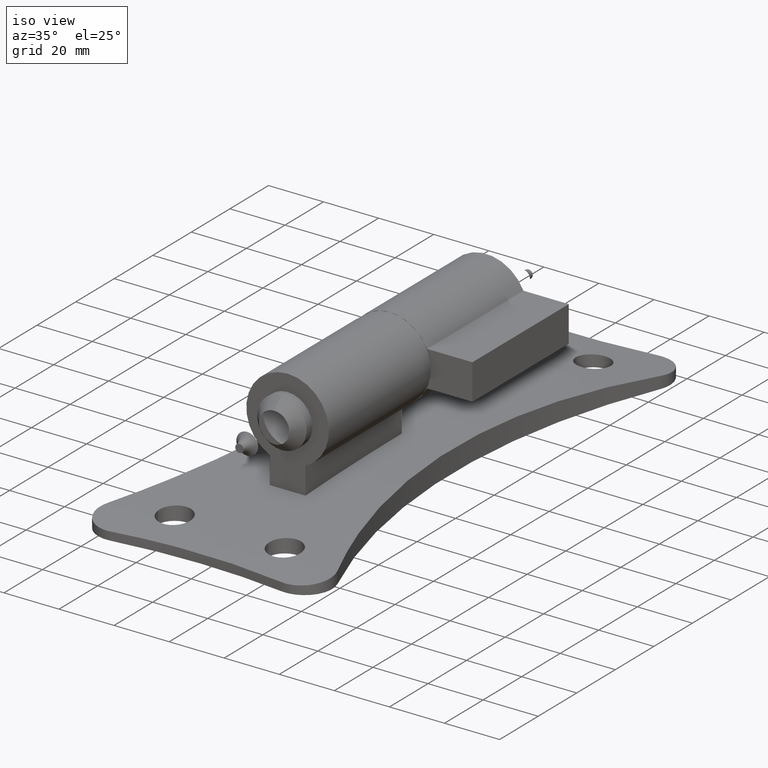
[diagram: clean part render]
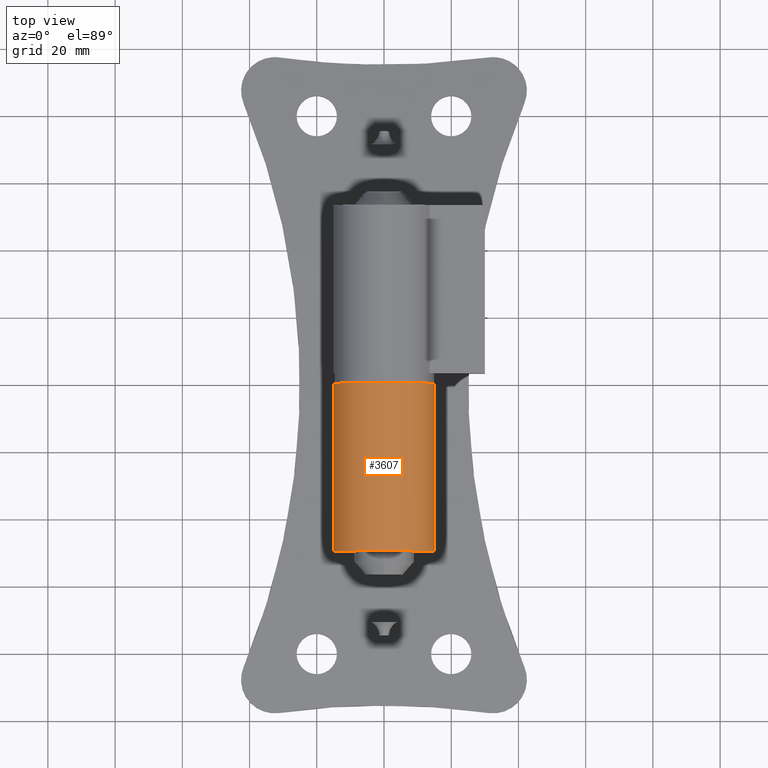
[diagram: tour spotlight — one face highlighted and labeled with its STEP entity id]
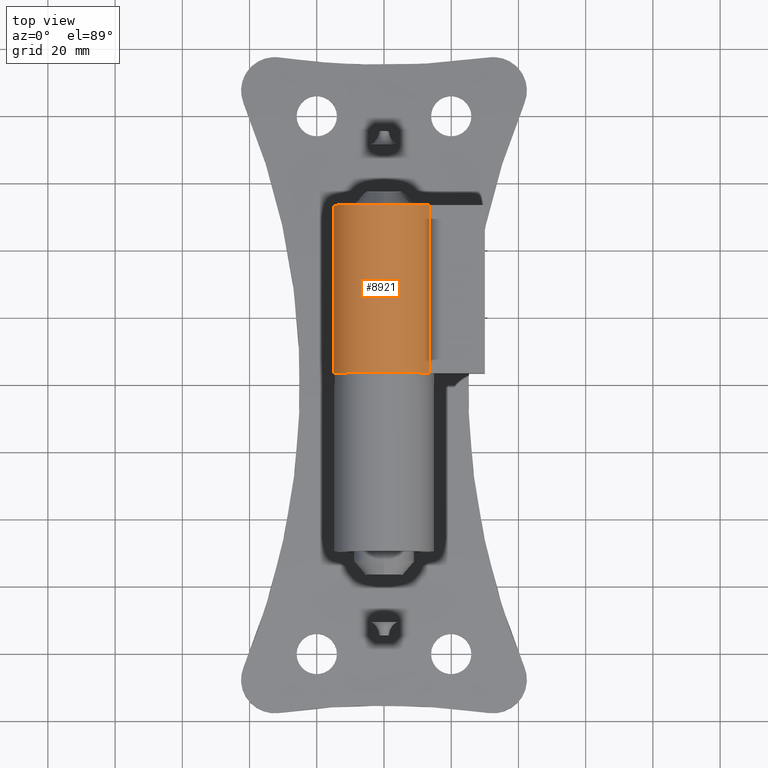
[diagram: tour spotlight — one face highlighted and labeled with its STEP entity id]
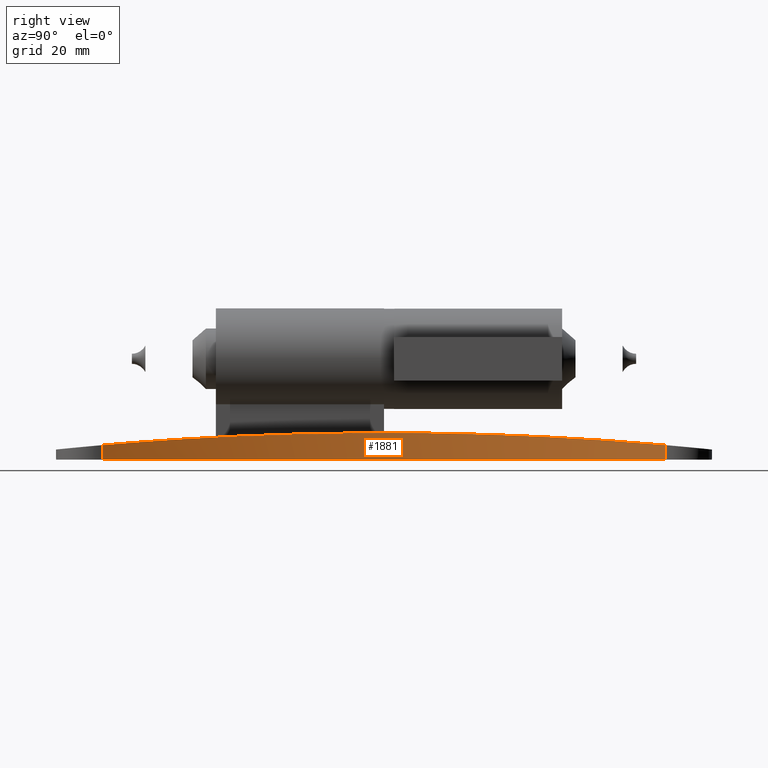
[diagram: tour spotlight — one face highlighted and labeled with its STEP entity id]
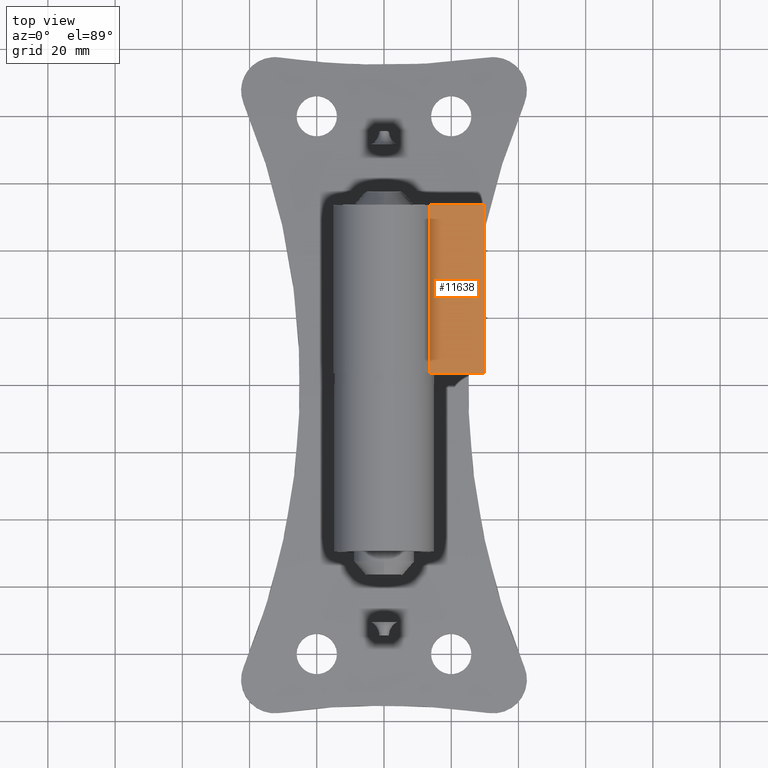
[diagram: tour spotlight — one face highlighted and labeled with its STEP entity id]
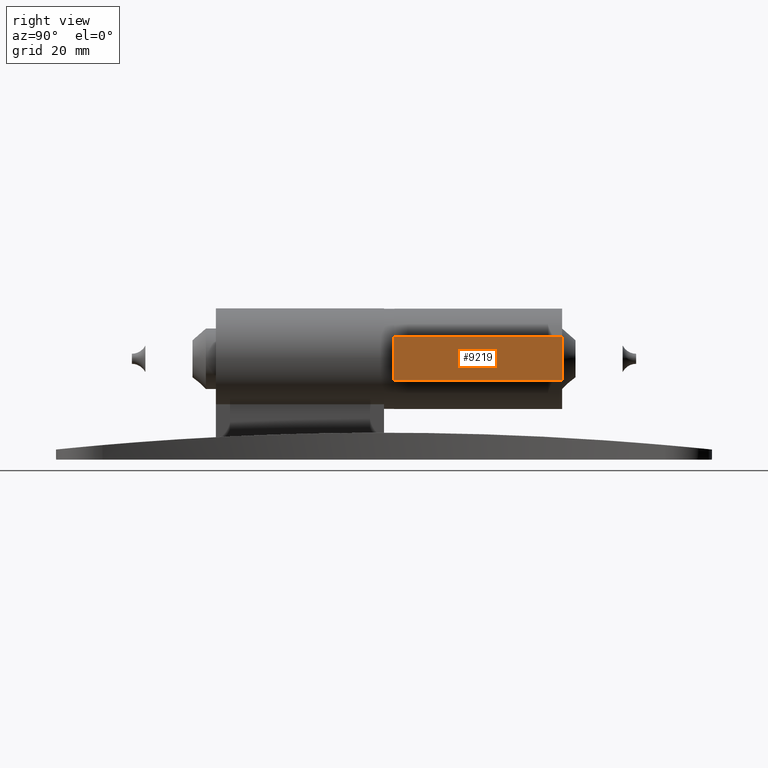
[diagram: tour spotlight — one face highlighted and labeled with its STEP entity id]
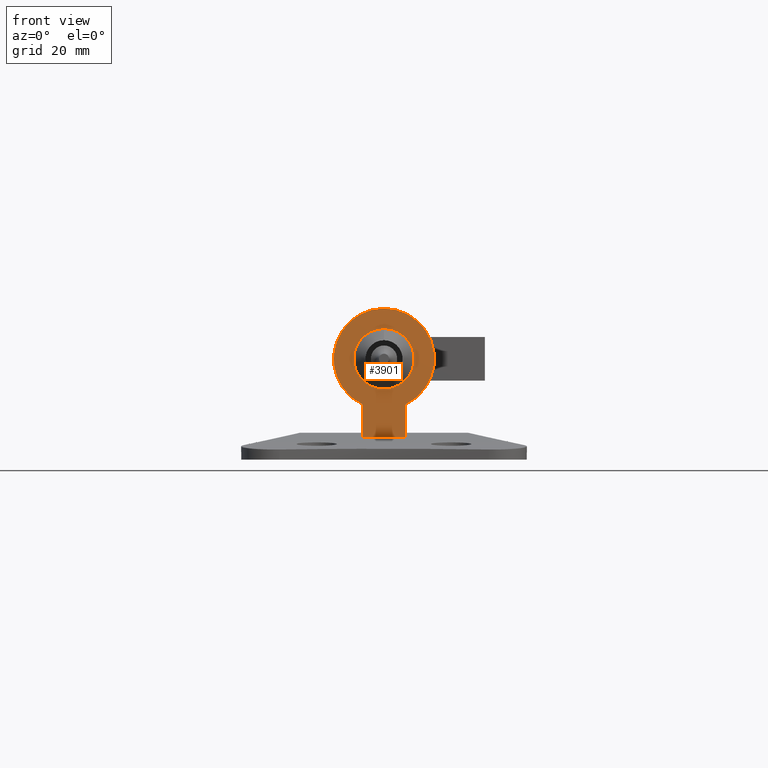
[diagram: tour spotlight — one face highlighted and labeled with its STEP entity id]
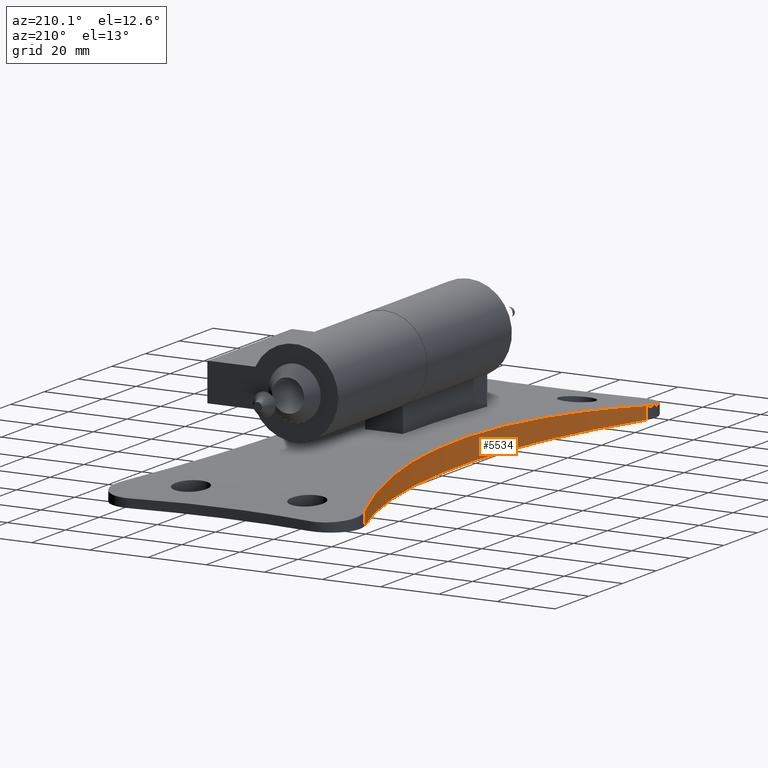
[diagram: tour spotlight — one face highlighted and labeled with its STEP entity id]
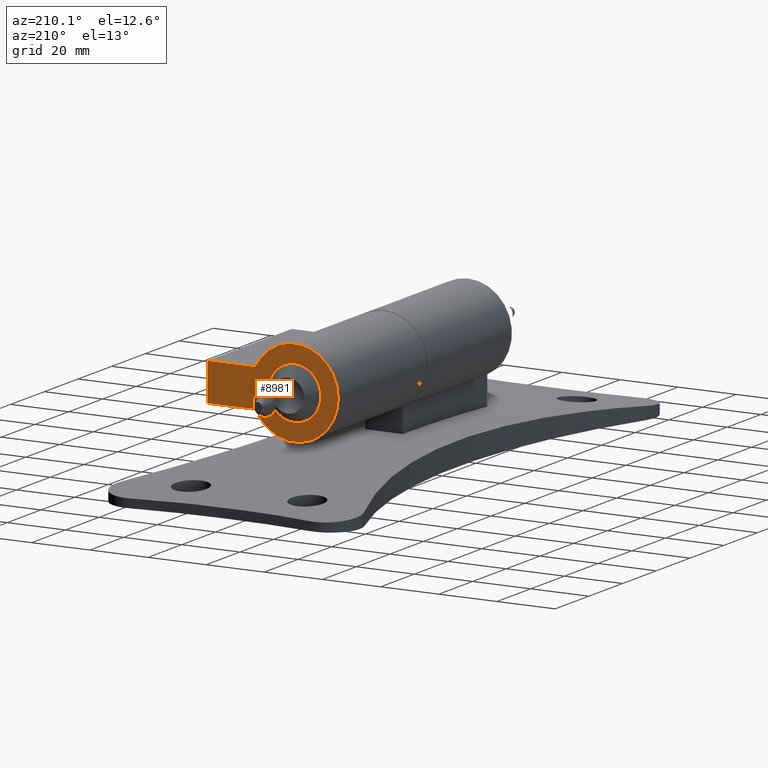
[diagram: tour spotlight — one face highlighted and labeled with its STEP entity id]
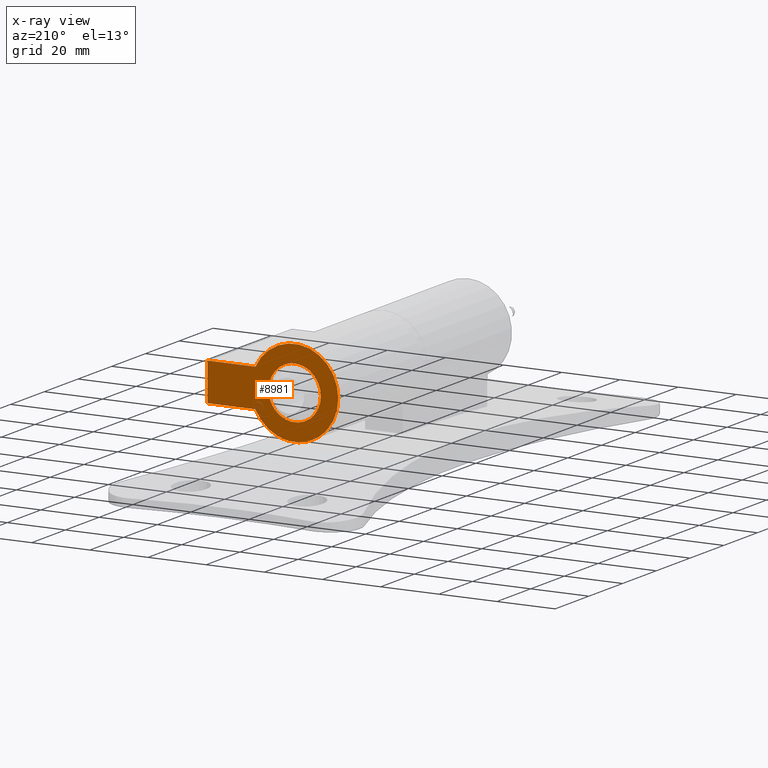
[diagram: x-ray of the same camera — body ghosted, this tour face saturated]
A machine part: a face-by-face anatomy tour. The part has 214 B-rep faces; the first image is the clean iso view, then the 8 largest visible faces are spotlighted one at a time (largest first), each with its STEP entity span.

Face 1 — top view, entity #3607. In plain terms, the highlighted cylindrical surface (partial cylindrical patch) has radius 15 mm, axis along (0, 1, 0).
Definition (entity closure, byte-faithful):
#750 = CARTESIAN_POINT ( 'NONE',  ( -6.499999999999992895, -50.00000000000000000, 16.48149416540422152 ) ) ;
#1004 = DIRECTION ( 'NONE',  ( 0.000000000000000000, 1.000000000000000000, 0.000000000000000000 ) ) ;
#1017 = VERTEX_POINT ( 'NONE', #11259 ) ;
#1305 = LINE ( 'NONE', #750, #7776 ) ;
#1609 = EDGE_CURVE ( 'NONE', #9383, #10942, #9232, .T. ) ;
#1632 = DIRECTION ( 'NONE',  ( 0.000000000000000000, 1.000000000000000000, 0.000000000000000000 ) ) ;
#1763 = AXIS2_PLACEMENT_3D ( 'NONE', #9105, #1004, #10952 ) ;
#2274 = DIRECTION ( 'NONE',  ( 0.000000000000000000, 0.000000000000000000, 1.000000000000000000 ) ) ;
#2927 = CARTESIAN_POINT ( 'NONE',  ( 6.499999999999998224, -50.00000000000000000, 16.48149416540422507 ) ) ;
#3265 = EDGE_LOOP ( 'NONE', ( #7234, #3302, #5886, #7516 ) ) ;
#3302 = ORIENTED_EDGE ( 'NONE', *, *, #6980, .F. ) ;
#3607 = ADVANCED_FACE ( 'NONE', ( #8219 ), #8625, .T. ) ;
#3808 = AXIS2_PLACEMENT_3D ( 'NONE', #7684, #4953, #2274 ) ;
#4469 = CARTESIAN_POINT ( 'NONE',  ( -6.499999999999992895, 0.000000000000000000, 16.48149416540422152 ) ) ;
#4597 = DIRECTION ( 'NONE',  ( 0.000000000000000000, 1.000000000000000000, 0.000000000000000000 ) ) ;
#4953 = DIRECTION ( 'NONE',  ( 0.000000000000000000, 1.000000000000000000, 0.000000000000000000 ) ) ;
#5318 = AXIS2_PLACEMENT_3D ( 'NONE', #9962, #4597, #5486 ) ;
#5486 = DIRECTION ( 'NONE',  ( 0.000000000000000000, 0.000000000000000000, 1.000000000000000000 ) ) ;
#5886 = ORIENTED_EDGE ( 'NONE', *, *, #7231, .T. ) ;
#5965 = EDGE_CURVE ( 'NONE', #9263, #10942, #8128, .T. ) ;
#6980 = EDGE_CURVE ( 'NONE', #1017, #9263, #1305, .T. ) ;
#7231 = EDGE_CURVE ( 'NONE', #1017, #9383, #11193, .T. ) ;
#7234 = ORIENTED_EDGE ( 'NONE', *, *, #5965, .F. ) ;
#7516 = ORIENTED_EDGE ( 'NONE', *, *, #1609, .T. ) ;
#7684 = CARTESIAN_POINT ( 'NONE',  ( 0.000000000000000000, 0.000000000000000000, 30.00000000000000000 ) ) ;
#7730 = DIRECTION ( 'NONE',  ( 0.000000000000000000, 1.000000000000000000, 0.000000000000000000 ) ) ;
#7776 = VECTOR ( 'NONE', #1632, 1000.000000000000000 ) ;
#8128 = CIRCLE ( 'NONE', #3808, 15.00000000000000000 ) ;
#8219 = FACE_OUTER_BOUND ( 'NONE', #3265, .T. ) ;
#8549 = CARTESIAN_POINT ( 'NONE',  ( 6.499999999999998224, -50.00000000000000000, 16.48149416540422507 ) ) ;
#8625 = CYLINDRICAL_SURFACE ( 'NONE', #5318, 15.00000000000000000 ) ;
#9105 = CARTESIAN_POINT ( 'NONE',  ( 0.000000000000000000, -50.00000000000000000, 30.00000000000000000 ) ) ;
#9232 = LINE ( 'NONE', #8549, #9517 ) ;
#9263 = VERTEX_POINT ( 'NONE', #4469 ) ;
#9301 = CARTESIAN_POINT ( 'NONE',  ( 6.499999999999998224, 0.000000000000000000, 16.48149416540422507 ) ) ;
#9383 = VERTEX_POINT ( 'NONE', #2927 ) ;
#9517 = VECTOR ( 'NONE', #7730, 1000.000000000000000 ) ;
#9962 = CARTESIAN_POINT ( 'NONE',  ( 0.000000000000000000, -50.00000000000000000, 30.00000000000000000 ) ) ;
#10942 = VERTEX_POINT ( 'NONE', #9301 ) ;
#10952 = DIRECTION ( 'NONE',  ( 0.000000000000000000, 0.000000000000000000, 1.000000000000000000 ) ) ;
#11193 = CIRCLE ( 'NONE', #1763, 15.00000000000000000 ) ;
#11259 = CARTESIAN_POINT ( 'NONE',  ( -6.499999999999992895, -50.00000000000000000, 16.48149416540422152 ) ) ;

Face 2 — top view, entity #8921. In plain terms, the highlighted cylindrical surface (partial cylindrical patch) has radius 15 mm, axis along (0, -1, 0).
Definition (entity closure, byte-faithful):
#224 = CARTESIAN_POINT ( 'NONE',  ( 0.000000000000000000, 25.00000000000000000, 0.000000000000000000 ) ) ;
#252 = EDGE_CURVE ( 'NONE', #10775, #6697, #8673, .T. ) ;
#255 = CIRCLE ( 'NONE', #7672, 15.00000000000000355 ) ;
#438 = CARTESIAN_POINT ( 'NONE',  ( 6.499999999999999112, 25.00000000000000000, -13.51850583459577670 ) ) ;
#1468 = DIRECTION ( 'NONE',  ( 0.000000000000000000, -1.000000000000000000, 0.000000000000000000 ) ) ;
#1552 = VECTOR ( 'NONE', #7489, 1000.000000000000000 ) ;
#1702 = DIRECTION ( 'NONE',  ( 0.000000000000000000, 1.000000000000000000, 0.000000000000000000 ) ) ;
#1709 = VERTEX_POINT ( 'NONE', #9441 ) ;
#1888 = DIRECTION ( 'NONE',  ( 0.000000000000000000, 0.000000000000000000, 1.000000000000000000 ) ) ;
#2059 = CARTESIAN_POINT ( 'NONE',  ( -6.499999999999999112, 25.00000000000000000, -13.51850583459577848 ) ) ;
#2111 = DIRECTION ( 'NONE',  ( 0.000000000000000000, 0.000000000000000000, -1.000000000000000000 ) ) ;
#2536 = ORIENTED_EDGE ( 'NONE', *, *, #9309, .T. ) ;
#2789 = CARTESIAN_POINT ( 'NONE',  ( 0.000000000000000000, -25.00000000000000000, 0.000000000000000000 ) ) ;
#4508 = LINE ( 'NONE', #2059, #1552 ) ;
#4667 = CARTESIAN_POINT ( 'NONE',  ( 6.499999999999999112, 25.00000000000000000, -13.51850583459577670 ) ) ;
#4800 = VERTEX_POINT ( 'NONE', #9629 ) ;
#5167 = AXIS2_PLACEMENT_3D ( 'NONE', #224, #8338, #2111 ) ;
#5384 = DIRECTION ( 'NONE',  ( 0.000000000000000000, 1.000000000000000000, 0.000000000000000000 ) ) ;
#5542 = ORIENTED_EDGE ( 'NONE', *, *, #10716, .T. ) ;
#5550 = EDGE_LOOP ( 'NONE', ( #5542, #7904, #8426, #2536 ) ) ;
#6697 = VERTEX_POINT ( 'NONE', #4667 ) ;
#6745 = FACE_OUTER_BOUND ( 'NONE', #5550, .T. ) ;
#7025 = CYLINDRICAL_SURFACE ( 'NONE', #5167, 15.00000000000000355 ) ;
#7312 = VECTOR ( 'NONE', #1468, 1000.000000000000000 ) ;
#7489 = DIRECTION ( 'NONE',  ( 0.000000000000000000, -1.000000000000000000, 0.000000000000000000 ) ) ;
#7602 = LINE ( 'NONE', #438, #7312 ) ;
#7672 = AXIS2_PLACEMENT_3D ( 'NONE', #2789, #5384, #1888 ) ;
#7904 = ORIENTED_EDGE ( 'NONE', *, *, #9553, .F. ) ;
#7976 = DIRECTION ( 'NONE',  ( 0.000000000000000000, 0.000000000000000000, 1.000000000000000000 ) ) ;
#8338 = DIRECTION ( 'NONE',  ( 0.000000000000000000, -1.000000000000000000, 0.000000000000000000 ) ) ;
#8426 = ORIENTED_EDGE ( 'NONE', *, *, #252, .F. ) ;
#8673 = CIRCLE ( 'NONE', #9858, 15.00000000000000355 ) ;
#8921 = ADVANCED_FACE ( 'NONE', ( #6745 ), #7025, .T. ) ;
#9309 = EDGE_CURVE ( 'NONE', #10775, #4800, #4508, .T. ) ;
#9441 = CARTESIAN_POINT ( 'NONE',  ( 6.499999999999999112, -25.00000000000000000, -13.51850583459577670 ) ) ;
#9553 = EDGE_CURVE ( 'NONE', #6697, #1709, #7602, .T. ) ;
#9629 = CARTESIAN_POINT ( 'NONE',  ( -6.499999999999999112, -25.00000000000000000, -13.51850583459577848 ) ) ;
#9725 = CARTESIAN_POINT ( 'NONE',  ( 0.000000000000000000, 25.00000000000000000, 0.000000000000000000 ) ) ;
#9858 = AXIS2_PLACEMENT_3D ( 'NONE', #9725, #1702, #7976 ) ;
#10716 = EDGE_CURVE ( 'NONE', #4800, #1709, #255, .T. ) ;
#10775 = VERTEX_POINT ( 'NONE', #10911 ) ;
#10911 = CARTESIAN_POINT ( 'NONE',  ( -6.499999999999999112, 25.00000000000000000, -13.51850583459577848 ) ) ;

Face 3 — right view, entity #1881. In plain terms, the highlighted cylindrical surface (partial cylindrical patch) has radius 218 mm, axis along (-0, -0, -1).
Definition (entity closure, byte-faithful):
#453 = CARTESIAN_POINT ( 'NONE',  ( 32.34425567468348817, -56.56549752855829638, 6.348277840994082766 ) ) ;
#490 = CARTESIAN_POINT ( 'NONE',  ( 38.96373255751093723, 77.10468155604596063, 4.905950750514575631 ) ) ;
#646 = VERTEX_POINT ( 'NONE', #9670 ) ;
#759 = B_SPLINE_CURVE_WITH_KNOTS ( 'NONE', 3,
 ( #2113, #490, #3133, #1377, #9454, #5812, #2192, #1267, #4085, #3028, #3097, #2152, #7667, #2222, #5853, #6739, #3176, #5889, #453, #8448, #6703, #9417, #1338, #7623, #4045, #9335 ),
 .UNSPECIFIED., .F., .F.,
 ( 4, 2, 2, 2, 2, 2, 2, 2, 2, 2, 2, 2, 4 ),
 ( -0.08553153312487930815, -0.06414806992872293390, -0.04276460673256655270, -0.02138114353641017151, -0.01603527773737108142, -0.01068941193833200520, 2.319659746174984605E-06, 0.02138578285590252148, 0.04276924605205890961, 0.06415270924821524223, 0.06949857504725436008, 0.07484444084629345018, 0.08553617244437163036 ),
 .UNSPECIFIED. ) ;
#1267 = CARTESIAN_POINT ( 'NONE',  ( 25.89708387510080456, 19.83820288359617834, 7.795620354405551566 ) ) ;
#1323 = CIRCLE ( 'NONE', #3512, 217.9999999999999716 ) ;
#1338 = CARTESIAN_POINT ( 'NONE',  ( 37.21942091343402836, -71.98333903162497904, 5.284988638162904095 ) ) ;
#1377 = CARTESIAN_POINT ( 'NONE',  ( 32.38872751653794069, 56.72507851762770059, 6.338472820810558517 ) ) ;
#1397 = CARTESIAN_POINT ( 'NONE',  ( 41.73245614035086959, -83.75784016260337239, 0.000000000000000000 ) ) ;
#1640 = VERTEX_POINT ( 'NONE', #1397 ) ;
#1767 = CARTESIAN_POINT ( 'NONE',  ( 243.0000000000000000, 5.951782687918847827E-14, 8.000000000000000000 ) ) ;
#1881 = ADVANCED_FACE ( 'NONE', ( #7087 ), #5537, .F. ) ;
#2113 = CARTESIAN_POINT ( 'NONE',  ( 41.73245614035089091, 83.75784016260337239, 4.320227545400734392 ) ) ;
#2152 = CARTESIAN_POINT ( 'NONE',  ( 25.08981896449668980, 7.225989119736580868, 7.979486417518203645 ) ) ;
#2192 = CARTESIAN_POINT ( 'NONE',  ( 26.78861674261857928, 28.78064431700069292, 7.593076006480350415 ) ) ;
#2222 = CARTESIAN_POINT ( 'NONE',  ( 25.00007807629693346, -7.233689743125000682, 7.999982178745385752 ) ) ;
#2270 = ORIENTED_EDGE ( 'NONE', *, *, #7409, .F. ) ;
#2741 = DIRECTION ( 'NONE',  ( 1.000000000000000000, 0.000000000000000000, 0.000000000000000000 ) ) ;
#2948 = CARTESIAN_POINT ( 'NONE',  ( 41.73245614035089091, 83.75784016260337239, 4.320227545400734392 ) ) ;
#3028 = CARTESIAN_POINT ( 'NONE',  ( 25.47168026215324232, 14.44594657087307965, 7.892438370796466707 ) ) ;
#3097 = CARTESIAN_POINT ( 'NONE',  ( 25.35927826689682618, 12.64047953659341772, 7.918053228421905843 ) ) ;
#3133 = CARTESIAN_POINT ( 'NONE',  ( 36.54567487948116167, 70.36657067788107156, 5.428821626150370783 ) ) ;
#3174 = EDGE_CURVE ( 'NONE', #5024, #646, #759, .T. ) ;
#3176 = CARTESIAN_POINT ( 'NONE',  ( 27.81914940996751540, -35.66458637150522293, 7.359496663043877618 ) ) ;
#3304 = DIRECTION ( 'NONE',  ( -0.000000000000000000, -0.000000000000000000, -1.000000000000000000 ) ) ;
#3512 = AXIS2_PLACEMENT_3D ( 'NONE', #7275, #8147, #2741 ) ;
#3543 = ORIENTED_EDGE ( 'NONE', *, *, #3812, .F. ) ;
#3553 = VERTEX_POINT ( 'NONE', #10790 ) ;
#3812 = EDGE_CURVE ( 'NONE', #3553, #1640, #1323, .T. ) ;
#4045 = CARTESIAN_POINT ( 'NONE',  ( 40.34804017554793631, -80.43113068233202512, 4.613100608331591523 ) ) ;
#4085 = CARTESIAN_POINT ( 'NONE',  ( 25.74058005284501505, 18.04438152237883841, 7.831222622047899762 ) ) ;
#4377 = DIRECTION ( 'NONE',  ( -0.000000000000000000, -0.000000000000000000, -1.000000000000000000 ) ) ;
#4529 = LINE ( 'NONE', #10462, #10915 ) ;
#4769 = EDGE_CURVE ( 'NONE', #646, #1640, #5942, .T. ) ;
#4868 = AXIS2_PLACEMENT_3D ( 'NONE', #1767, #4377, #6291 ) ;
#5024 = VERTEX_POINT ( 'NONE', #2948 ) ;
#5160 = DIRECTION ( 'NONE',  ( -0.000000000000000000, 0.000000000000000000, -1.000000000000000000 ) ) ;
#5537 = CYLINDRICAL_SURFACE ( 'NONE', #4868, 217.9999999999999716 ) ;
#5812 = CARTESIAN_POINT ( 'NONE',  ( 27.84986203454162990, 35.84946207879881541, 7.352564389524274269 ) ) ;
#5853 = CARTESIAN_POINT ( 'NONE',  ( 25.35901755125515677, -14.40205606255261728, 7.917870032814287917 ) ) ;
#5889 = CARTESIAN_POINT ( 'NONE',  ( 30.60703218845783269, -49.63857779898262379, 6.734825171120636611 ) ) ;
#5942 = LINE ( 'NONE', #8664, #7774 ) ;
#6210 = ORIENTED_EDGE ( 'NONE', *, *, #3174, .T. ) ;
#6291 = DIRECTION ( 'NONE',  ( -1.000000000000000000, 0.000000000000000000, 0.000000000000000000 ) ) ;
#6442 = ORIENTED_EDGE ( 'NONE', *, *, #4769, .T. ) ;
#6703 = CARTESIAN_POINT ( 'NONE',  ( 35.49831914455320714, -66.86024807464130504, 5.658382011661815980 ) ) ;
#6739 = CARTESIAN_POINT ( 'NONE',  ( 26.76851631791814512, -28.61751080596182106, 7.597634484983090353 ) ) ;
#7087 = FACE_OUTER_BOUND ( 'NONE', #8982, .T. ) ;
#7275 = CARTESIAN_POINT ( 'NONE',  ( 243.0000000000000000, 5.951782687918847827E-14, 0.000000000000000000 ) ) ;
#7409 = EDGE_CURVE ( 'NONE', #5024, #3553, #4529, .T. ) ;
#7623 = CARTESIAN_POINT ( 'NONE',  ( 39.04671170512838785, -77.07170364722840361, 4.891272312058735139 ) ) ;
#7667 = CARTESIAN_POINT ( 'NONE',  ( 24.99996098090520036, 3.613314846957471627, 8.000008906278250009 ) ) ;
#7774 = VECTOR ( 'NONE', #5160, 1000.000000000000000 ) ;
#8147 = DIRECTION ( 'NONE',  ( 0.000000000000000000, 0.000000000000000000, 1.000000000000000000 ) ) ;
#8448 = CARTESIAN_POINT ( 'NONE',  ( 34.95432658034132345, -65.14765079690027960, 5.777033581346492142 ) ) ;
#8664 = CARTESIAN_POINT ( 'NONE',  ( 41.73245614035086959, -83.75784016260337239, 8.000000000000000000 ) ) ;
#8982 = EDGE_LOOP ( 'NONE', ( #2270, #6210, #6442, #3543 ) ) ;
#9335 = CARTESIAN_POINT ( 'NONE',  ( 41.73245614035089091, -83.75784016260337239, 4.320227545400734392 ) ) ;
#9417 = CARTESIAN_POINT ( 'NONE',  ( 36.63070861218859875, -70.27770558669983814, 5.412393099398966179 ) ) ;
#9454 = CARTESIAN_POINT ( 'NONE',  ( 30.64989852864793107, 49.82168406428561980, 6.725272201491775625 ) ) ;
#9670 = CARTESIAN_POINT ( 'NONE',  ( 41.73245614035089091, -83.75784016260337239, 4.320227545400734392 ) ) ;
#10462 = CARTESIAN_POINT ( 'NONE',  ( 41.73245614035086959, 83.75784016260337239, 8.000000000000000000 ) ) ;
#10790 = CARTESIAN_POINT ( 'NONE',  ( 41.73245614035086959, 83.75784016260337239, 0.000000000000000000 ) ) ;
#10915 = VECTOR ( 'NONE', #3304, 1000.000000000000000 ) ;

Face 4 — top view, entity #11638. In plain terms, the highlighted planar face has unit normal (-0, 0, -1).
Definition (entity closure, byte-faithful):
#158 = VERTEX_POINT ( 'NONE', #10452 ) ;
#335 = ORIENTED_EDGE ( 'NONE', *, *, #9553, .T. ) ;
#438 = CARTESIAN_POINT ( 'NONE',  ( 6.499999999999999112, 25.00000000000000000, -13.51850583459577670 ) ) ;
#645 = VECTOR ( 'NONE', #1602, 1000.000000000000000 ) ;
#842 = EDGE_CURVE ( 'NONE', #1709, #158, #1356, .T. ) ;
#1356 = LINE ( 'NONE', #7472, #3885 ) ;
#1468 = DIRECTION ( 'NONE',  ( 0.000000000000000000, -1.000000000000000000, 0.000000000000000000 ) ) ;
#1602 = DIRECTION ( 'NONE',  ( -1.052528040581484065E-16, 0.000000000000000000, -1.000000000000000000 ) ) ;
#1667 = CARTESIAN_POINT ( 'NONE',  ( 6.499999999999999112, 25.00000000000000000, -30.00000000000000000 ) ) ;
#1709 = VERTEX_POINT ( 'NONE', #9441 ) ;
#1969 = DIRECTION ( 'NONE',  ( -1.052528040581484065E-16, 0.000000000000000000, -1.000000000000000000 ) ) ;
#2532 = CARTESIAN_POINT ( 'NONE',  ( 6.499999999999999112, 25.00000000000000000, -30.00000000000000000 ) ) ;
#2692 = VECTOR ( 'NONE', #4348, 1000.000000000000000 ) ;
#3379 = DIRECTION ( 'NONE',  ( -1.000000000000000000, 0.000000000000000000, 1.052528040581484188E-16 ) ) ;
#3459 = EDGE_CURVE ( 'NONE', #6697, #7427, #7795, .T. ) ;
#3885 = VECTOR ( 'NONE', #1969, 1000.000000000000000 ) ;
#3974 = LINE ( 'NONE', #1667, #2692 ) ;
#4316 = DIRECTION ( 'NONE',  ( 1.052528040581484188E-16, 0.000000000000000000, 1.000000000000000000 ) ) ;
#4348 = DIRECTION ( 'NONE',  ( 0.000000000000000000, -1.000000000000000000, 0.000000000000000000 ) ) ;
#4667 = CARTESIAN_POINT ( 'NONE',  ( 6.499999999999999112, 25.00000000000000000, -13.51850583459577670 ) ) ;
#4713 = FACE_OUTER_BOUND ( 'NONE', #6964, .T. ) ;
#5142 = ORIENTED_EDGE ( 'NONE', *, *, #6937, .F. ) ;
#6697 = VERTEX_POINT ( 'NONE', #4667 ) ;
#6937 = EDGE_CURVE ( 'NONE', #7427, #158, #3974, .T. ) ;
#6964 = EDGE_LOOP ( 'NONE', ( #9338, #5142, #7474, #335 ) ) ;
#7053 = AXIS2_PLACEMENT_3D ( 'NONE', #2532, #3379, #4316 ) ;
#7312 = VECTOR ( 'NONE', #1468, 1000.000000000000000 ) ;
#7427 = VERTEX_POINT ( 'NONE', #7787 ) ;
#7472 = CARTESIAN_POINT ( 'NONE',  ( 6.499999999999999112, -25.00000000000000000, -30.00000000000000000 ) ) ;
#7474 = ORIENTED_EDGE ( 'NONE', *, *, #3459, .F. ) ;
#7602 = LINE ( 'NONE', #438, #7312 ) ;
#7787 = CARTESIAN_POINT ( 'NONE',  ( 6.499999999999999112, 25.00000000000000000, -30.00000000000000000 ) ) ;
#7795 = LINE ( 'NONE', #9771, #645 ) ;
#9338 = ORIENTED_EDGE ( 'NONE', *, *, #842, .T. ) ;
#9441 = CARTESIAN_POINT ( 'NONE',  ( 6.499999999999999112, -25.00000000000000000, -13.51850583459577670 ) ) ;
#9553 = EDGE_CURVE ( 'NONE', #6697, #1709, #7602, .T. ) ;
#9771 = CARTESIAN_POINT ( 'NONE',  ( 6.499999999999999112, 25.00000000000000000, -30.00000000000000000 ) ) ;
#10452 = CARTESIAN_POINT ( 'NONE',  ( 6.499999999999999112, -25.00000000000000000, -30.00000000000000000 ) ) ;
#11608 = PLANE ( 'NONE',  #7053 ) ;
#11638 = ADVANCED_FACE ( 'NONE', ( #4713 ), #11608, .F. ) ;

Face 5 — right view, entity #9219. In plain terms, the highlighted planar face has unit normal (-1, 0, 0).
Definition (entity closure, byte-faithful):
#158 = VERTEX_POINT ( 'NONE', #10452 ) ;
#615 = DIRECTION ( 'NONE',  ( -1.000000000000000000, 0.000000000000000000, 0.000000000000000000 ) ) ;
#1032 = VECTOR ( 'NONE', #7390, 1000.000000000000000 ) ;
#1414 = VERTEX_POINT ( 'NONE', #11396 ) ;
#1480 = AXIS2_PLACEMENT_3D ( 'NONE', #5289, #3462, #1704 ) ;
#1667 = CARTESIAN_POINT ( 'NONE',  ( 6.499999999999999112, 25.00000000000000000, -30.00000000000000000 ) ) ;
#1704 = DIRECTION ( 'NONE',  ( 1.000000000000000000, 0.000000000000000000, 0.000000000000000000 ) ) ;
#1905 = ORIENTED_EDGE ( 'NONE', *, *, #5041, .T. ) ;
#2080 = EDGE_CURVE ( 'NONE', #7427, #1414, #10951, .T. ) ;
#2692 = VECTOR ( 'NONE', #4348, 1000.000000000000000 ) ;
#3168 = EDGE_LOOP ( 'NONE', ( #1905, #4294, #5345, #3271 ) ) ;
#3271 = ORIENTED_EDGE ( 'NONE', *, *, #6937, .T. ) ;
#3437 = VECTOR ( 'NONE', #3648, 1000.000000000000000 ) ;
#3462 = DIRECTION ( 'NONE',  ( 0.000000000000000000, 0.000000000000000000, 1.000000000000000000 ) ) ;
#3648 = DIRECTION ( 'NONE',  ( 0.000000000000000000, -1.000000000000000000, 0.000000000000000000 ) ) ;
#3872 = EDGE_CURVE ( 'NONE', #1414, #9237, #5813, .T. ) ;
#3974 = LINE ( 'NONE', #1667, #2692 ) ;
#4294 = ORIENTED_EDGE ( 'NONE', *, *, #3872, .F. ) ;
#4348 = DIRECTION ( 'NONE',  ( 0.000000000000000000, -1.000000000000000000, 0.000000000000000000 ) ) ;
#4528 = LINE ( 'NONE', #4788, #1032 ) ;
#4788 = CARTESIAN_POINT ( 'NONE',  ( -6.499999999999999112, -25.00000000000000000, -30.00000000000000000 ) ) ;
#5041 = EDGE_CURVE ( 'NONE', #158, #9237, #4528, .T. ) ;
#5289 = CARTESIAN_POINT ( 'NONE',  ( -6.499999999999999112, 25.00000000000000000, -30.00000000000000000 ) ) ;
#5345 = ORIENTED_EDGE ( 'NONE', *, *, #2080, .F. ) ;
#5813 = LINE ( 'NONE', #7213, #3437 ) ;
#5860 = CARTESIAN_POINT ( 'NONE',  ( -6.499999999999999112, 25.00000000000000000, -30.00000000000000000 ) ) ;
#6250 = VECTOR ( 'NONE', #615, 1000.000000000000000 ) ;
#6461 = FACE_OUTER_BOUND ( 'NONE', #3168, .T. ) ;
#6937 = EDGE_CURVE ( 'NONE', #7427, #158, #3974, .T. ) ;
#7086 = PLANE ( 'NONE',  #1480 ) ;
#7213 = CARTESIAN_POINT ( 'NONE',  ( -6.499999999999999112, 25.00000000000000000, -30.00000000000000000 ) ) ;
#7390 = DIRECTION ( 'NONE',  ( -1.000000000000000000, 0.000000000000000000, 0.000000000000000000 ) ) ;
#7427 = VERTEX_POINT ( 'NONE', #7787 ) ;
#7787 = CARTESIAN_POINT ( 'NONE',  ( 6.499999999999999112, 25.00000000000000000, -30.00000000000000000 ) ) ;
#9219 = ADVANCED_FACE ( 'NONE', ( #6461 ), #7086, .F. ) ;
#9237 = VERTEX_POINT ( 'NONE', #9768 ) ;
#9768 = CARTESIAN_POINT ( 'NONE',  ( -6.499999999999999112, -25.00000000000000000, -30.00000000000000000 ) ) ;
#10452 = CARTESIAN_POINT ( 'NONE',  ( 6.499999999999999112, -25.00000000000000000, -30.00000000000000000 ) ) ;
#10951 = LINE ( 'NONE', #5860, #6250 ) ;
#11396 = CARTESIAN_POINT ( 'NONE',  ( -6.499999999999999112, 25.00000000000000000, -30.00000000000000000 ) ) ;

Face 6 — front view, entity #3901. In plain terms, the highlighted planar face has unit normal (0, 1, 0).
Definition (entity closure, byte-faithful):
#264 = EDGE_CURVE ( 'NONE', #3218, #1017, #7257, .T. ) ;
#311 = VERTEX_POINT ( 'NONE', #794 ) ;
#507 = DIRECTION ( 'NONE',  ( 0.000000000000000000, 0.000000000000000000, 1.000000000000000000 ) ) ;
#776 = FACE_BOUND ( 'NONE', #9749, .T. ) ;
#794 = CARTESIAN_POINT ( 'NONE',  ( 6.499999999999999112, -49.99999999999997158, 6.690304111017897348 ) ) ;
#982 = ORIENTED_EDGE ( 'NONE', *, *, #5291, .T. ) ;
#1004 = DIRECTION ( 'NONE',  ( 0.000000000000000000, 1.000000000000000000, 0.000000000000000000 ) ) ;
#1017 = VERTEX_POINT ( 'NONE', #11259 ) ;
#1052 = FACE_OUTER_BOUND ( 'NONE', #9911, .T. ) ;
#1763 = AXIS2_PLACEMENT_3D ( 'NONE', #9105, #1004, #10952 ) ;
#2065 = DIRECTION ( 'NONE',  ( 1.000000000000000000, -0.000000000000000000, -0.000000000000000000 ) ) ;
#2783 = ORIENTED_EDGE ( 'NONE', *, *, #6067, .T. ) ;
#2927 = CARTESIAN_POINT ( 'NONE',  ( 6.499999999999998224, -50.00000000000000000, 16.48149416540422507 ) ) ;
#2988 = LINE ( 'NONE', #8855, #3692 ) ;
#3054 = CIRCLE ( 'NONE', #4415, 9.000000000000001776 ) ;
#3150 = DIRECTION ( 'NONE',  ( 0.000000000000000000, 1.000000000000000000, 0.000000000000000000 ) ) ;
#3218 = VERTEX_POINT ( 'NONE', #5735 ) ;
#3282 = VECTOR ( 'NONE', #2065, 1000.000000000000000 ) ;
#3389 = DIRECTION ( 'NONE',  ( -0.000000000000000000, -0.000000000000000000, 1.000000000000000000 ) ) ;
#3590 = VERTEX_POINT ( 'NONE', #4588 ) ;
#3628 = EDGE_CURVE ( 'NONE', #3218, #311, #3708, .T. ) ;
#3692 = VECTOR ( 'NONE', #3389, 1000.000000000000000 ) ;
#3708 = LINE ( 'NONE', #3845, #3282 ) ;
#3845 = CARTESIAN_POINT ( 'NONE',  ( -42.50000000000002132, -50.00000000000000000, 6.690304111018008371 ) ) ;
#3901 = ADVANCED_FACE ( 'NONE', ( #1052, #776 ), #10081, .F. ) ;
#4317 = DIRECTION ( 'NONE',  ( -0.000000000000000000, -0.000000000000000000, 1.000000000000000000 ) ) ;
#4415 = AXIS2_PLACEMENT_3D ( 'NONE', #5865, #3150, #507 ) ;
#4475 = ORIENTED_EDGE ( 'NONE', *, *, #7231, .F. ) ;
#4562 = ORIENTED_EDGE ( 'NONE', *, *, #3628, .T. ) ;
#4588 = CARTESIAN_POINT ( 'NONE',  ( 0.000000000000000000, -50.00000000000000000, 39.00000000000000000 ) ) ;
#4595 = VECTOR ( 'NONE', #4317, 1000.000000000000000 ) ;
#5291 = EDGE_CURVE ( 'NONE', #311, #9383, #2988, .T. ) ;
#5684 = ORIENTED_EDGE ( 'NONE', *, *, #264, .F. ) ;
#5735 = CARTESIAN_POINT ( 'NONE',  ( -6.499999999999999112, -49.99999999999997868, 6.690304111018008371 ) ) ;
#5865 = CARTESIAN_POINT ( 'NONE',  ( 0.000000000000000000, -50.00000000000000000, 30.00000000000000000 ) ) ;
#6067 = EDGE_CURVE ( 'NONE', #3590, #3590, #3054, .T. ) ;
#6343 = CARTESIAN_POINT ( 'NONE',  ( 6.500000000000000000, -50.00000000000000000, -500000.0000000000582 ) ) ;
#7231 = EDGE_CURVE ( 'NONE', #1017, #9383, #11193, .T. ) ;
#7257 = LINE ( 'NONE', #9839, #4595 ) ;
#7726 = AXIS2_PLACEMENT_3D ( 'NONE', #6343, #10562, #8054 ) ;
#8054 = DIRECTION ( 'NONE',  ( 0.000000000000000000, -0.000000000000000000, 1.000000000000000000 ) ) ;
#8855 = CARTESIAN_POINT ( 'NONE',  ( 6.500000000000000000, -50.00000000000000000, -500000.0000000000582 ) ) ;
#9105 = CARTESIAN_POINT ( 'NONE',  ( 0.000000000000000000, -50.00000000000000000, 30.00000000000000000 ) ) ;
#9383 = VERTEX_POINT ( 'NONE', #2927 ) ;
#9749 = EDGE_LOOP ( 'NONE', ( #2783 ) ) ;
#9839 = CARTESIAN_POINT ( 'NONE',  ( -6.500000000000000000, -50.00000000000000000, -500000.0000000000582 ) ) ;
#9911 = EDGE_LOOP ( 'NONE', ( #5684, #4562, #982, #4475 ) ) ;
#10081 = PLANE ( 'NONE',  #7726 ) ;
#10562 = DIRECTION ( 'NONE',  ( 0.000000000000000000, 1.000000000000000000, 0.000000000000000000 ) ) ;
#10952 = DIRECTION ( 'NONE',  ( 0.000000000000000000, 0.000000000000000000, 1.000000000000000000 ) ) ;
#11193 = CIRCLE ( 'NONE', #1763, 15.00000000000000000 ) ;
#11259 = CARTESIAN_POINT ( 'NONE',  ( -6.499999999999992895, -50.00000000000000000, 16.48149416540422152 ) ) ;

Face 7 — auxiliary view, entity #5534. In plain terms, the highlighted cylindrical surface (partial cylindrical patch) has radius 218 mm, axis along (-0, -0, -1).
Definition (entity closure, byte-faithful):
#20 = VERTEX_POINT ( 'NONE', #1716 ) ;
#392 = CARTESIAN_POINT ( 'NONE',  ( -37.21942091343403547, -71.98333903162499325, 5.284988638162897878 ) ) ;
#501 = CARTESIAN_POINT ( 'NONE',  ( -35.49831914455320003, -66.86024807464134767, 5.658382011661812427 ) ) ;
#543 = CARTESIAN_POINT ( 'NONE',  ( -32.38872751653801174, 56.72507851762777875, 6.338472820810556740 ) ) ;
#594 = VECTOR ( 'NONE', #11349, 1000.000000000000000 ) ;
#638 = CARTESIAN_POINT ( 'NONE',  ( -41.73245614035092643, 83.75784016260340081, 0.000000000000000000 ) ) ;
#915 = EDGE_CURVE ( 'NONE', #9550, #4984, #3052, .T. ) ;
#949 = EDGE_LOOP ( 'NONE', ( #11425, #6680, #6152, #3175 ) ) ;
#1239 = FACE_OUTER_BOUND ( 'NONE', #949, .T. ) ;
#1417 = CARTESIAN_POINT ( 'NONE',  ( -27.84986203454163700, 35.84946207879887226, 7.352564389524271604 ) ) ;
#1455 = CARTESIAN_POINT ( 'NONE',  ( -41.73245614035092643, 83.75784016260340081, 8.000000000000000000 ) ) ;
#1716 = CARTESIAN_POINT ( 'NONE',  ( -41.73245614035092643, -83.75784016260340081, 0.000000000000000000 ) ) ;
#2073 = DIRECTION ( 'NONE',  ( -1.000000000000000000, 0.000000000000000000, 0.000000000000000000 ) ) ;
#2138 = AXIS2_PLACEMENT_3D ( 'NONE', #11240, #7456, #2073 ) ;
#2233 = CARTESIAN_POINT ( 'NONE',  ( -27.81914940996750119, -35.66458637150518740, 7.359496663043878506 ) ) ;
#2268 = CARTESIAN_POINT ( 'NONE',  ( -36.63070861218859875, -70.27770558669986656, 5.412393099398962626 ) ) ;
#2307 = CARTESIAN_POINT ( 'NONE',  ( -26.76851631791810604, -28.61751080596180685, 7.597634484983089465 ) ) ;
#3052 = B_SPLINE_CURVE_WITH_KNOTS ( 'NONE', 3,
 ( #9345, #9303, #10232, #543, #4053, #1417, #7593, #3188, #4908, #4945, #3144, #5820, #4872, #6783, #5022, #2307, #2233, #4132, #8573, #5742, #501, #2268, #392, #11216, #9461, #7714 ),
 .UNSPECIFIED., .F., .F.,
 ( 4, 2, 2, 2, 2, 2, 2, 2, 2, 2, 2, 2, 4 ),
 ( -0.08553153312487940529, -0.06414806992872301716, -0.04276460673256662903, -0.02138114353641024090, -0.01603527773737115081, -0.01068941193833206071, 2.319659746119473454E-06, 0.02138578285590250760, 0.04276924605205889574, 0.06415270924821525611, 0.06949857504725437396, 0.07484444084629346405, 0.08553617244437161649 ),
 .UNSPECIFIED. ) ;
#3144 = CARTESIAN_POINT ( 'NONE',  ( -25.35927826689682263, 12.64047953659346213, 7.918053228421905843 ) ) ;
#3175 = ORIENTED_EDGE ( 'NONE', *, *, #10535, .F. ) ;
#3188 = CARTESIAN_POINT ( 'NONE',  ( -25.89708387510079746, 19.83820288359623873, 7.795620354405551566 ) ) ;
#3242 = LINE ( 'NONE', #7804, #594 ) ;
#3324 = VECTOR ( 'NONE', #5410, 1000.000000000000000 ) ;
#4053 = CARTESIAN_POINT ( 'NONE',  ( -30.64989852864795594, 49.82168406428566954, 6.725272201491774737 ) ) ;
#4132 = CARTESIAN_POINT ( 'NONE',  ( -30.60703218845782203, -49.63857779898261668, 6.734825171120636611 ) ) ;
#4840 = CARTESIAN_POINT ( 'NONE',  ( -243.0000000000000000, -7.559372887450003061E-21, 0.000000000000000000 ) ) ;
#4872 = CARTESIAN_POINT ( 'NONE',  ( -24.99996098090521457, 3.613314846957532911, 8.000008906278248233 ) ) ;
#4908 = CARTESIAN_POINT ( 'NONE',  ( -25.74058005284505413, 18.04438152237889526, 7.831222622047899762 ) ) ;
#4945 = CARTESIAN_POINT ( 'NONE',  ( -25.47168026215327430, 14.44594657087313827, 7.892438370796468483 ) ) ;
#4984 = VERTEX_POINT ( 'NONE', #5738 ) ;
#5022 = CARTESIAN_POINT ( 'NONE',  ( -25.35901755125511414, -14.40205606255258175, 7.917870032814286141 ) ) ;
#5410 = DIRECTION ( 'NONE',  ( -0.000000000000000000, -0.000000000000000000, -1.000000000000000000 ) ) ;
#5534 = ADVANCED_FACE ( 'NONE', ( #1239 ), #10411, .F. ) ;
#5738 = CARTESIAN_POINT ( 'NONE',  ( -41.73245614035091222, -83.75784016260340081, 4.320227545400734392 ) ) ;
#5742 = CARTESIAN_POINT ( 'NONE',  ( -34.95432658034127371, -65.14765079690025118, 5.777033581346490365 ) ) ;
#5820 = CARTESIAN_POINT ( 'NONE',  ( -25.08981896449667914, 7.225989119736631494, 7.979486417518203645 ) ) ;
#6050 = EDGE_CURVE ( 'NONE', #6898, #20, #11122, .T. ) ;
#6152 = ORIENTED_EDGE ( 'NONE', *, *, #6050, .T. ) ;
#6680 = ORIENTED_EDGE ( 'NONE', *, *, #11119, .T. ) ;
#6754 = DIRECTION ( 'NONE',  ( -0.000000000000000000, -0.000000000000000000, -1.000000000000000000 ) ) ;
#6783 = CARTESIAN_POINT ( 'NONE',  ( -25.00007807629694767, -7.233689743124956273, 7.999982178745385752 ) ) ;
#6898 = VERTEX_POINT ( 'NONE', #638 ) ;
#7456 = DIRECTION ( 'NONE',  ( -0.000000000000000000, -0.000000000000000000, -1.000000000000000000 ) ) ;
#7593 = CARTESIAN_POINT ( 'NONE',  ( -26.78861674261856862, 28.78064431700075332, 7.593076006480349527 ) ) ;
#7714 = CARTESIAN_POINT ( 'NONE',  ( -41.73245614035091222, -83.75784016260340081, 4.320227545400734392 ) ) ;
#7804 = CARTESIAN_POINT ( 'NONE',  ( -41.73245614035092643, -83.75784016260340081, 8.000000000000000000 ) ) ;
#8427 = DIRECTION ( 'NONE',  ( -1.000000000000000000, 0.000000000000000000, 0.000000000000000000 ) ) ;
#8544 = CARTESIAN_POINT ( 'NONE',  ( -41.73245614035091222, 83.75784016260340081, 4.320227545400734392 ) ) ;
#8573 = CARTESIAN_POINT ( 'NONE',  ( -32.34425567468343843, -56.56549752855826796, 6.348277840994080101 ) ) ;
#9303 = CARTESIAN_POINT ( 'NONE',  ( -38.96373255751097275, 77.10468155604600327, 4.905950750514573855 ) ) ;
#9345 = CARTESIAN_POINT ( 'NONE',  ( -41.73245614035091222, 83.75784016260340081, 4.320227545400734392 ) ) ;
#9461 = CARTESIAN_POINT ( 'NONE',  ( -40.34804017554782973, -80.43113068233193985, 4.613100608331594188 ) ) ;
#9550 = VERTEX_POINT ( 'NONE', #8544 ) ;
#10232 = CARTESIAN_POINT ( 'NONE',  ( -36.54567487948123983, 70.36657067788114261, 5.428821626150365454 ) ) ;
#10411 = CYLINDRICAL_SURFACE ( 'NONE', #2138, 217.9999999999999716 ) ;
#10535 = EDGE_CURVE ( 'NONE', #4984, #20, #3242, .T. ) ;
#10547 = LINE ( 'NONE', #1455, #3324 ) ;
#10713 = AXIS2_PLACEMENT_3D ( 'NONE', #4840, #6754, #8427 ) ;
#11119 = EDGE_CURVE ( 'NONE', #9550, #6898, #10547, .T. ) ;
#11122 = CIRCLE ( 'NONE', #10713, 217.9999999999999716 ) ;
#11216 = CARTESIAN_POINT ( 'NONE',  ( -39.04671170512842338, -77.07170364722844624, 4.891272312058726257 ) ) ;
#11240 = CARTESIAN_POINT ( 'NONE',  ( -243.0000000000000000, -7.559372887450003061E-21, 8.000000000000000000 ) ) ;
#11349 = DIRECTION ( 'NONE',  ( -0.000000000000000000, 0.000000000000000000, -1.000000000000000000 ) ) ;
#11425 = ORIENTED_EDGE ( 'NONE', *, *, #915, .F. ) ;

Face 8 — auxiliary view, entity #8981. An x-ray twin of the same camera follows (body ghosted, this face saturated) — the face is partly hidden behind the body. In plain terms, the highlighted planar face has unit normal (0, 1, 0).
Definition (entity closure, byte-faithful):
#252 = EDGE_CURVE ( 'NONE', #10775, #6697, #8673, .T. ) ;
#303 = AXIS2_PLACEMENT_3D ( 'NONE', #8409, #3769, #4678 ) ;
#615 = DIRECTION ( 'NONE',  ( -1.000000000000000000, 0.000000000000000000, 0.000000000000000000 ) ) ;
#645 = VECTOR ( 'NONE', #1602, 1000.000000000000000 ) ;
#781 = DIRECTION ( 'NONE',  ( 0.000000000000000000, 0.000000000000000000, 1.000000000000000000 ) ) ;
#892 = ORIENTED_EDGE ( 'NONE', *, *, #3459, .T. ) ;
#962 = VECTOR ( 'NONE', #9466, 1000.000000000000000 ) ;
#1414 = VERTEX_POINT ( 'NONE', #11396 ) ;
#1602 = DIRECTION ( 'NONE',  ( -1.052528040581484065E-16, 0.000000000000000000, -1.000000000000000000 ) ) ;
#1702 = DIRECTION ( 'NONE',  ( 0.000000000000000000, 1.000000000000000000, 0.000000000000000000 ) ) ;
#1844 = CIRCLE ( 'NONE', #5526, 9.000000000000000000 ) ;
#2080 = EDGE_CURVE ( 'NONE', #7427, #1414, #10951, .T. ) ;
#2594 = CARTESIAN_POINT ( 'NONE',  ( 0.000000000000000000, 25.00000000000000000, 0.000000000000000000 ) ) ;
#2722 = CARTESIAN_POINT ( 'NONE',  ( 0.000000000000000000, 25.00000000000000000, 9.000000000000000000 ) ) ;
#2949 = ORIENTED_EDGE ( 'NONE', *, *, #6089, .T. ) ;
#3459 = EDGE_CURVE ( 'NONE', #6697, #7427, #7795, .T. ) ;
#3769 = DIRECTION ( 'NONE',  ( 0.000000000000000000, 1.000000000000000000, 0.000000000000000000 ) ) ;
#4646 = FACE_BOUND ( 'NONE', #8024, .T. ) ;
#4667 = CARTESIAN_POINT ( 'NONE',  ( 6.499999999999999112, 25.00000000000000000, -13.51850583459577670 ) ) ;
#4678 = DIRECTION ( 'NONE',  ( 0.000000000000000000, 0.000000000000000000, 1.000000000000000000 ) ) ;
#4839 = EDGE_CURVE ( 'NONE', #9519, #9519, #1844, .T. ) ;
#5420 = ORIENTED_EDGE ( 'NONE', *, *, #2080, .T. ) ;
#5526 = AXIS2_PLACEMENT_3D ( 'NONE', #2594, #6253, #781 ) ;
#5617 = ORIENTED_EDGE ( 'NONE', *, *, #252, .T. ) ;
#5692 = PLANE ( 'NONE',  #303 ) ;
#5860 = CARTESIAN_POINT ( 'NONE',  ( -6.499999999999999112, 25.00000000000000000, -30.00000000000000000 ) ) ;
#6089 = EDGE_CURVE ( 'NONE', #1414, #10775, #7844, .T. ) ;
#6250 = VECTOR ( 'NONE', #615, 1000.000000000000000 ) ;
#6253 = DIRECTION ( 'NONE',  ( 0.000000000000000000, 1.000000000000000000, 0.000000000000000000 ) ) ;
#6697 = VERTEX_POINT ( 'NONE', #4667 ) ;
#7116 = ORIENTED_EDGE ( 'NONE', *, *, #4839, .F. ) ;
#7427 = VERTEX_POINT ( 'NONE', #7787 ) ;
#7526 = EDGE_LOOP ( 'NONE', ( #2949, #5617, #892, #5420 ) ) ;
#7787 = CARTESIAN_POINT ( 'NONE',  ( 6.499999999999999112, 25.00000000000000000, -30.00000000000000000 ) ) ;
#7795 = LINE ( 'NONE', #9771, #645 ) ;
#7844 = LINE ( 'NONE', #8578, #962 ) ;
#7976 = DIRECTION ( 'NONE',  ( 0.000000000000000000, 0.000000000000000000, 1.000000000000000000 ) ) ;
#8024 = EDGE_LOOP ( 'NONE', ( #7116 ) ) ;
#8409 = CARTESIAN_POINT ( 'NONE',  ( 0.000000000000000000, 25.00000000000000000, 0.000000000000000000 ) ) ;
#8578 = CARTESIAN_POINT ( 'NONE',  ( -6.500000000000002665, 25.00000000000000000, -13.51850583459577670 ) ) ;
#8673 = CIRCLE ( 'NONE', #9858, 15.00000000000000355 ) ;
#8735 = FACE_OUTER_BOUND ( 'NONE', #7526, .T. ) ;
#8981 = ADVANCED_FACE ( 'NONE', ( #8735, #4646 ), #5692, .T. ) ;
#9466 = DIRECTION ( 'NONE',  ( -1.052528040581484065E-16, 0.000000000000000000, 1.000000000000000000 ) ) ;
#9519 = VERTEX_POINT ( 'NONE', #2722 ) ;
#9725 = CARTESIAN_POINT ( 'NONE',  ( 0.000000000000000000, 25.00000000000000000, 0.000000000000000000 ) ) ;
#9771 = CARTESIAN_POINT ( 'NONE',  ( 6.499999999999999112, 25.00000000000000000, -30.00000000000000000 ) ) ;
#9858 = AXIS2_PLACEMENT_3D ( 'NONE', #9725, #1702, #7976 ) ;
#10775 = VERTEX_POINT ( 'NONE', #10911 ) ;
#10911 = CARTESIAN_POINT ( 'NONE',  ( -6.499999999999999112, 25.00000000000000000, -13.51850583459577848 ) ) ;
#10951 = LINE ( 'NONE', #5860, #6250 ) ;
#11396 = CARTESIAN_POINT ( 'NONE',  ( -6.499999999999999112, 25.00000000000000000, -30.00000000000000000 ) ) ;